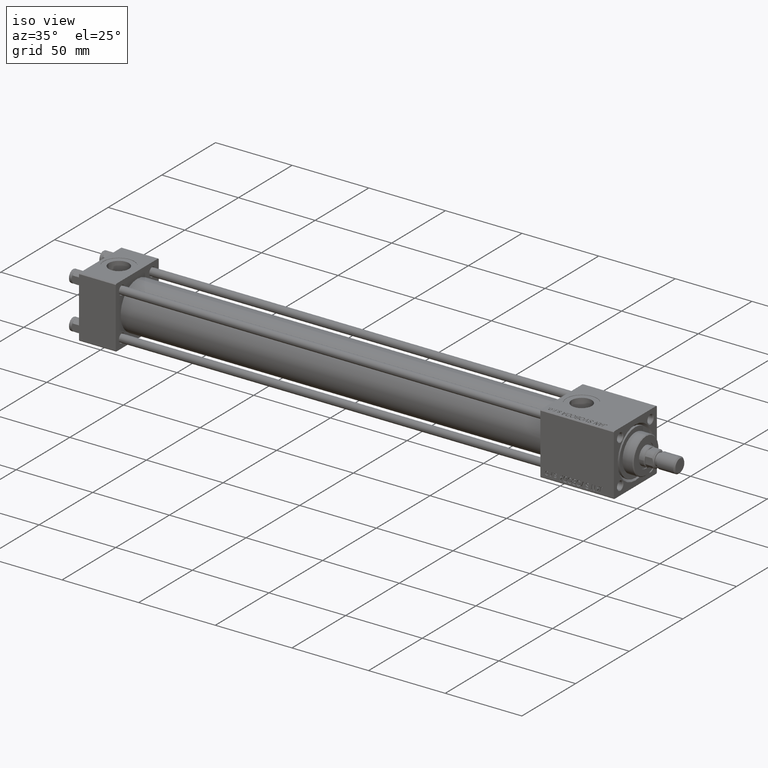
[diagram: clean part render]
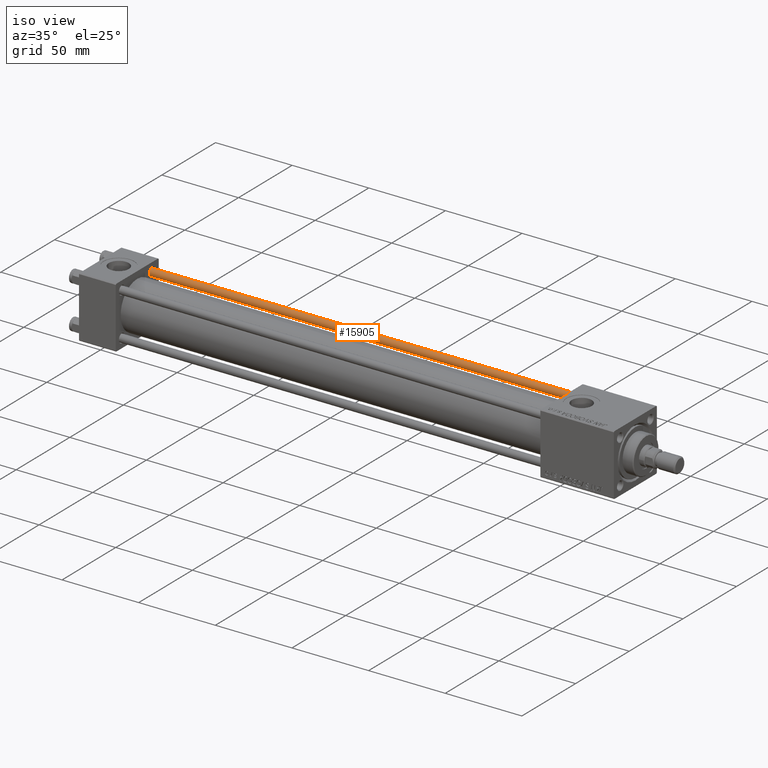
[diagram: same view with one face highlighted and labeled with its STEP entity id]
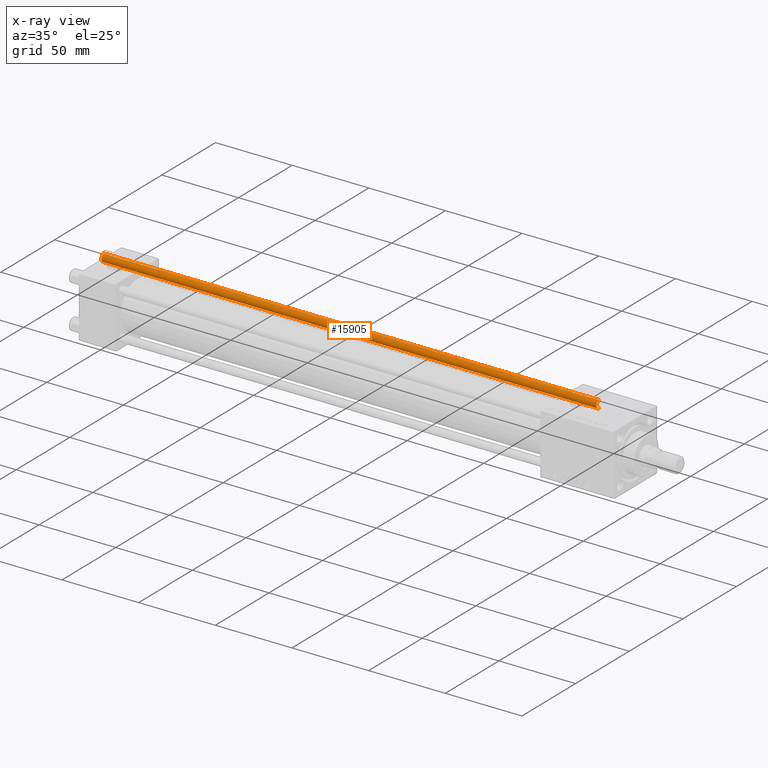
[diagram: x-ray of the same camera — body ghosted, the highlighted face saturated]
A machine part, iso view. The second image highlights one B-rep face of the part: STEP entity #15905.
The next image is the same camera in x-ray: the body ghosted, the highlighted face saturated — about 0% of this face is hidden behind the body in this view.
In plain terms, the highlighted cylindrical surface (edge-blend (fillet) strip) has radius 2.5 mm, axis along (-1, 0, 0).
Its self-contained STEP definition (entity closure, byte-faithful):
#499 = CARTESIAN_POINT ( 'NONE',  ( -2.500000000000000000, 0.000000000000000000, 323.5000000000000568 ) ) ;
#3473 = DIRECTION ( 'NONE',  ( 0.000000000000000000, 0.000000000000000000, -1.000000000000000000 ) ) ;
#5054 = DIRECTION ( 'NONE',  ( -1.000000000000000000, 0.000000000000000000, 0.000000000000000000 ) ) ;
#6647 = EDGE_LOOP ( 'NONE', ( #9553, #51173, #10900, #13045 ) ) ;
#7730 = CARTESIAN_POINT ( 'NONE',  ( 0.000000000000000000, 0.000000000000000000, 323.5000000000000568 ) ) ;
#9553 = ORIENTED_EDGE ( 'NONE', *, *, #23623, .F. ) ;
#10900 = ORIENTED_EDGE ( 'NONE', *, *, #46781, .T. ) ;
#10996 = LINE ( 'NONE', #19477, #38015 ) ;
#11082 = VERTEX_POINT ( 'NONE', #34939 ) ;
#11533 = DIRECTION ( 'NONE',  ( -0.000000000000000000, -0.000000000000000000, -1.000000000000000000 ) ) ;
#13045 = ORIENTED_EDGE ( 'NONE', *, *, #50108, .T. ) ;
#13848 = CARTESIAN_POINT ( 'NONE',  ( 0.000000000000000000, 0.000000000000000000, 324.0000000000000000 ) ) ;
#15905 = ADVANCED_FACE ( 'NONE', ( #34036 ), #46028, .T. ) ;
#18257 = AXIS2_PLACEMENT_3D ( 'NONE', #13848, #49765, #5054 ) ;
#18437 = CARTESIAN_POINT ( 'NONE',  ( 0.000000000000000000, 0.000000000000000000, 0.4999999999998894218 ) ) ;
#19477 = CARTESIAN_POINT ( 'NONE',  ( 2.500000000000000000, 3.061616997868383141E-16, 324.0000000000000000 ) ) ;
#20260 = DIRECTION ( 'NONE',  ( 1.000000000000000000, 0.000000000000000000, 0.000000000000000000 ) ) ;
#23623 = EDGE_CURVE ( 'NONE', #11082, #36876, #10996, .T. ) ;
#26090 = CIRCLE ( 'NONE', #44808, 2.500000000000000000 ) ;
#28913 = VERTEX_POINT ( 'NONE', #34591 ) ;
#30340 = CIRCLE ( 'NONE', #32054, 2.500000000000000000 ) ;
#32054 = AXIS2_PLACEMENT_3D ( 'NONE', #7730, #3473, #47908 ) ;
#32505 = DIRECTION ( 'NONE',  ( -0.000000000000000000, -0.000000000000000000, 1.000000000000000000 ) ) ;
#34036 = FACE_OUTER_BOUND ( 'NONE', #6647, .T. ) ;
#34591 = CARTESIAN_POINT ( 'NONE',  ( -2.500000000000000000, 0.000000000000000000, 0.4999999999998894218 ) ) ;
#34939 = CARTESIAN_POINT ( 'NONE',  ( 2.500000000000000000, 3.061616997868383141E-16, 323.5000000000000568 ) ) ;
#36876 = VERTEX_POINT ( 'NONE', #43227 ) ;
#38015 = VECTOR ( 'NONE', #11533, 1000.000000000000000 ) ;
#40344 = DIRECTION ( 'NONE',  ( -0.000000000000000000, -0.000000000000000000, -1.000000000000000000 ) ) ;
#40704 = VERTEX_POINT ( 'NONE', #499 ) ;
#41388 = LINE ( 'NONE', #52595, #48968 ) ;
#43227 = CARTESIAN_POINT ( 'NONE',  ( 2.500000000000000000, 3.061616997868383141E-16, 0.4999999999998894218 ) ) ;
#44808 = AXIS2_PLACEMENT_3D ( 'NONE', #18437, #32505, #20260 ) ;
#46028 = CYLINDRICAL_SURFACE ( 'NONE', #18257, 2.500000000000000000 ) ;
#46781 = EDGE_CURVE ( 'NONE', #40704, #28913, #41388, .T. ) ;
#47908 = DIRECTION ( 'NONE',  ( 1.000000000000000000, 0.000000000000000000, 0.000000000000000000 ) ) ;
#48968 = VECTOR ( 'NONE', #40344, 1000.000000000000000 ) ;
#49765 = DIRECTION ( 'NONE',  ( -0.000000000000000000, -0.000000000000000000, -1.000000000000000000 ) ) ;
#50108 = EDGE_CURVE ( 'NONE', #28913, #36876, #26090, .T. ) ;
#50581 = EDGE_CURVE ( 'NONE', #11082, #40704, #30340, .T. ) ;
#51173 = ORIENTED_EDGE ( 'NONE', *, *, #50581, .T. ) ;
#52595 = CARTESIAN_POINT ( 'NONE',  ( -2.500000000000000000, 0.000000000000000000, 324.0000000000000000 ) ) ;